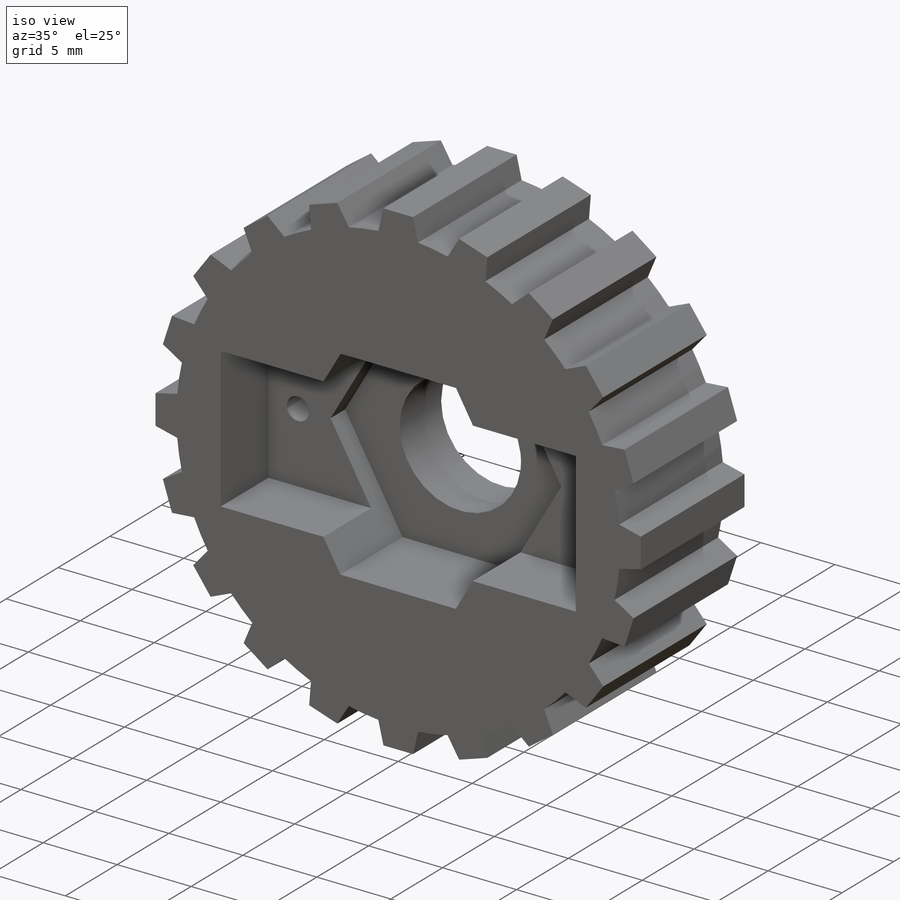
[diagram: iso view]
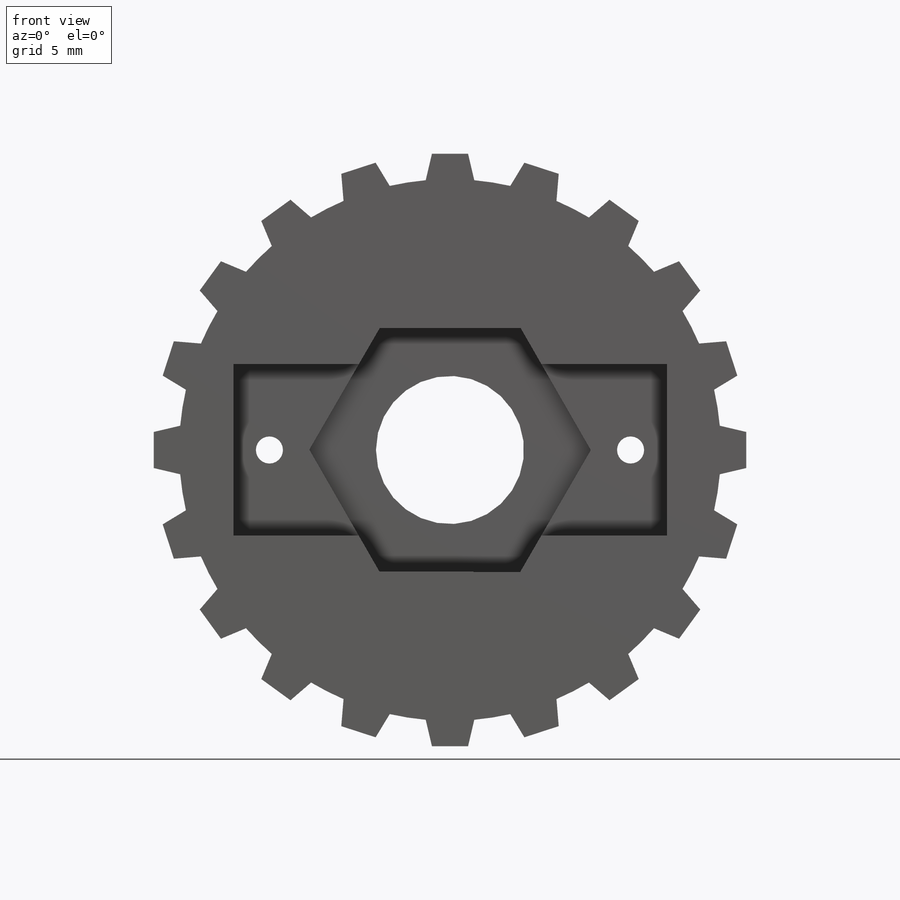
[diagram: front view]
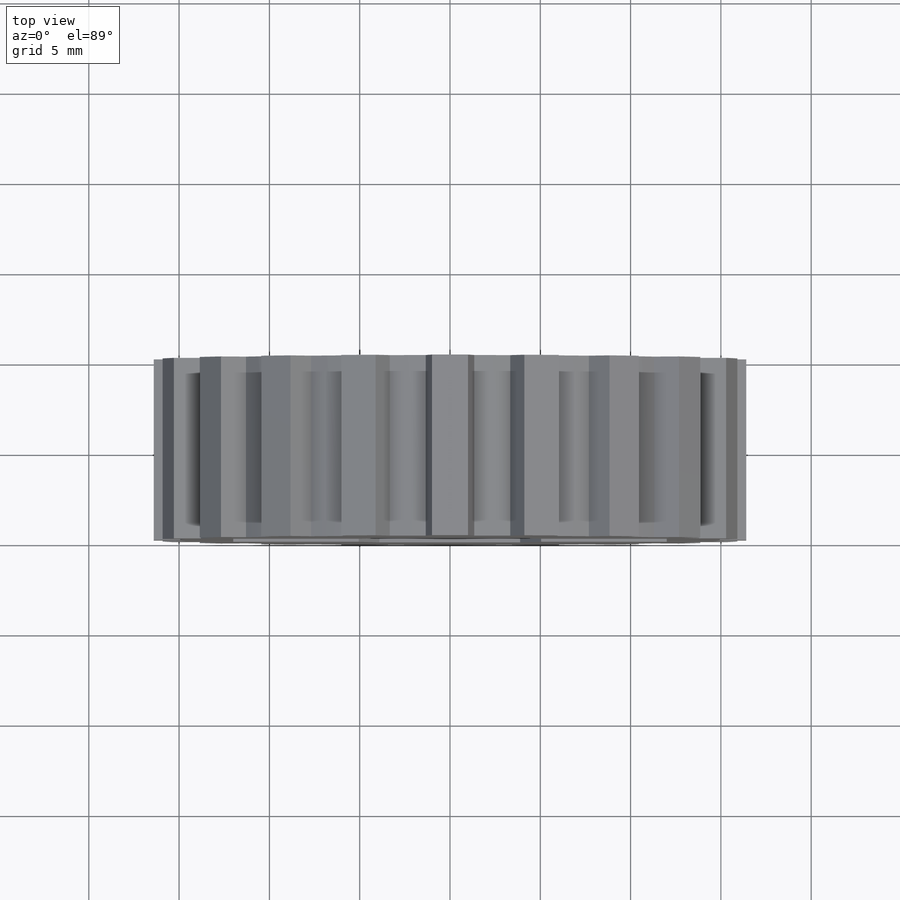
[diagram: top view]
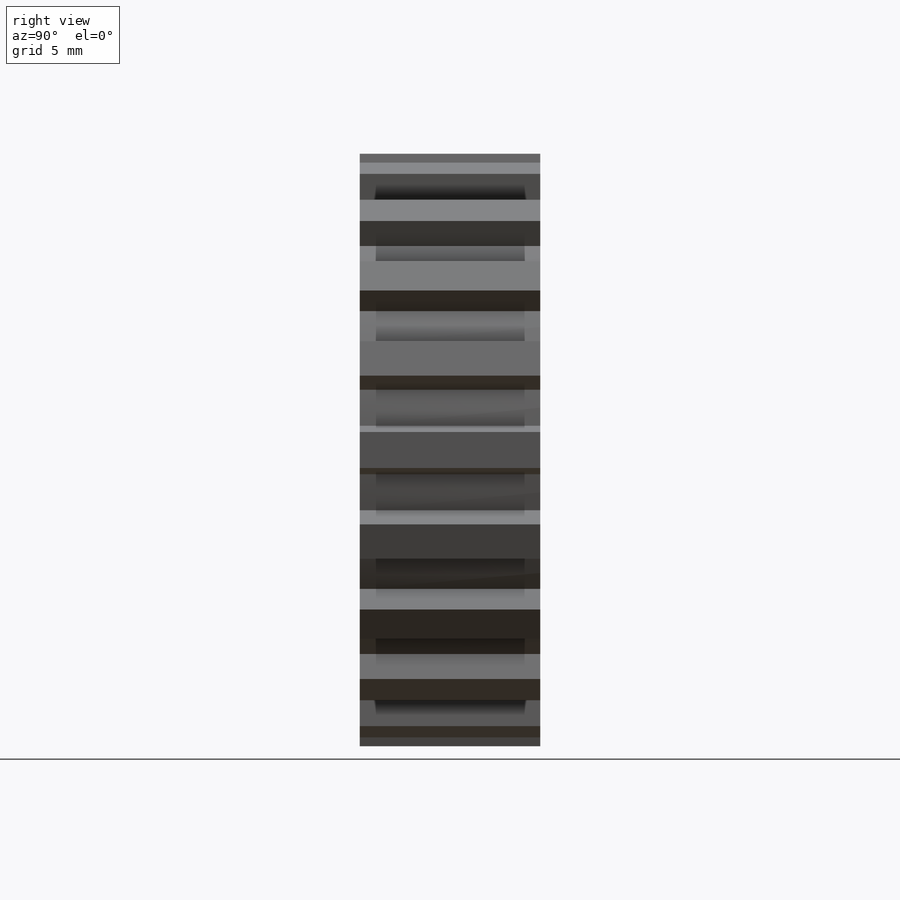
[diagram: right view]
SOLIDWORKS PART (.sldprt)
format: sldprt  version: not decoded by parser v0  size: 232,960 bytes
history: native  units: mm
features: sketch x8, extrude x2, hole x2, cut_extrude x2, material x1, pattern_circular x1 (+14 scaffold rows collapsed)
feature tree (30):
  scaffold x14  (default folders/planes/origin — collapsed)
  material  "Material <not specified>"
  sketch  "Sketch1"  dims[D1=30.0mm]
  extrude  "Extrude1"  Depth=10mm
  sketch  "Sketch2"  dims[c1.D4=34.0mm c1.D1=2.8mm c1.D2=2.0mm c1.D3=1.7mm c2.D4=~14.934524mm]
  extrude  "Extrude3"  [1 undecoded]
  pattern_circular  "CirPattern1"  Count=20 Angle=18deg
  hole  "Ø8.2 (8.2) Diameter Hole1"  Diameter=8.2mm Depth=10mm
  sketch  "3DSketch1"
  sketch  "Sketch3"  dims[hole-wizard template sketch: 46 standard entries collapsed; hole parameters kept: c15.Hole Dia.=8.2mm c15.Hole Depth=10.0mm c15.D3=~14.816244mm c15.Drill Angle=118.0deg]
  sketch  "Sketch4"  dims[D1=24.0mm D2=9.5mm]
  cut_extrude  "Extrude4"  Depth=4.6mm
  hole  "Ø1.5 (1.5) Diameter Hole1"  Diameter=1.5mm Depth=150mm
  sketch  "3DSketch2"  dims[D1=20.0mm]
  sketch  "Sketch5"  dims[hole-wizard template sketch: 47 standard entries collapsed; hole parameters kept: c15.Hole Depth=150.0mm c15.D3=~14.816244mm c15.Drill Angle=118.0deg]
  sketch  "Sketch6"  dims[D1=13.5mm]
  cut_extrude  "Extrude5"  Depth=6mm
decode coverage: 13 of 15 modeling features carry decoded parameters
note: ~ marks probable driven/reference dimensions
note: 1 parameter value undecoded
note: suppression state not decoded; provenance and decode notes live in map.json
